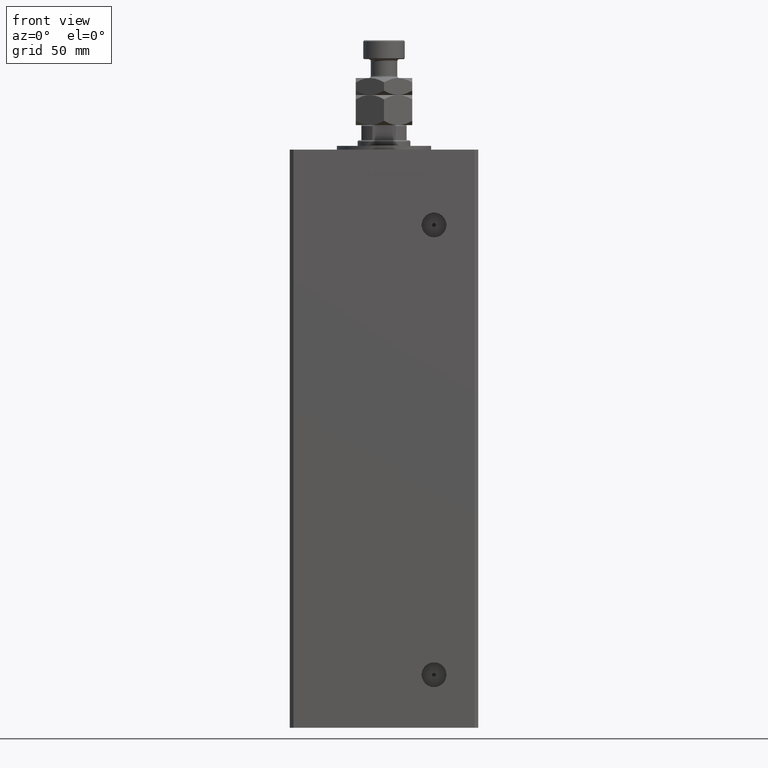
[diagram: clean part render]
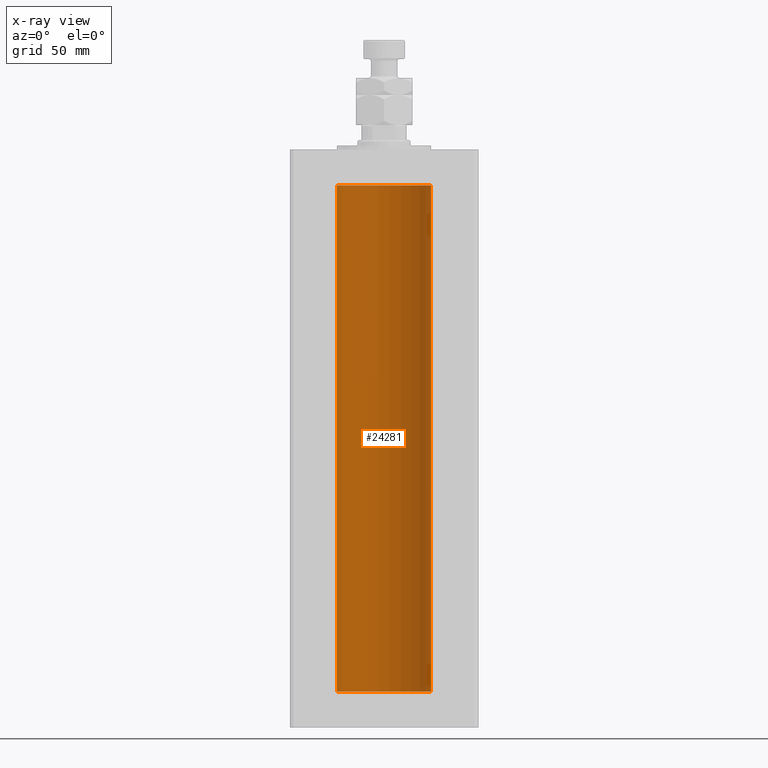
[diagram: x-ray — body ghosted, one internal face saturated and labeled with its STEP entity id]
A machine part, front view, then the same camera in x-ray: the body is ghosted and one INTERNAL B-rep face — a face not visible from any outside direction — is saturated and labeled: STEP entity #24281.
In plain terms, the highlighted cylindrical surface (partial cylindrical patch) has radius 25 mm, axis along (-0, -0, -1).
Its self-contained STEP definition (entity closure, byte-faithful):
#591 = CIRCLE ( 'NONE', #32727, 25.00000000000000000 ) ;
#901 = DIRECTION ( 'NONE',  ( -0.000000000000000000, -0.000000000000000000, -1.000000000000000000 ) ) ;
#3757 = DIRECTION ( 'NONE',  ( -0.000000000000000000, 0.000000000000000000, 1.000000000000000000 ) ) ;
#5106 = VERTEX_POINT ( 'NONE', #32987 ) ;
#6386 = CARTESIAN_POINT ( 'NONE',  ( 0.000000000000000000, 0.000000000000000000, 268.5000000000000000 ) ) ;
#6663 = FACE_OUTER_BOUND ( 'NONE', #44491, .T. ) ;
#8335 = VECTOR ( 'NONE', #15842, 1000.000000000000000 ) ;
#9104 = ORIENTED_EDGE ( 'NONE', *, *, #26717, .F. ) ;
#10496 = CYLINDRICAL_SURFACE ( 'NONE', #24766, 25.00000000000000000 ) ;
#10835 = DIRECTION ( 'NONE',  ( 1.000000000000000000, 0.000000000000000000, 0.000000000000000000 ) ) ;
#10935 = ORIENTED_EDGE ( 'NONE', *, *, #12588, .T. ) ;
#12588 = EDGE_CURVE ( 'NONE', #5106, #26485, #591, .T. ) ;
#14331 = CIRCLE ( 'NONE', #43939, 25.00000000000000000 ) ;
#14376 = CARTESIAN_POINT ( 'NONE',  ( 0.000000000000000000, 0.000000000000000000, 268.5000000000000000 ) ) ;
#14680 = VECTOR ( 'NONE', #901, 1000.000000000000000 ) ;
#15470 = CARTESIAN_POINT ( 'NONE',  ( -25.00000000000000000, 0.000000000000000000, 0.000000000000000000 ) ) ;
#15842 = DIRECTION ( 'NONE',  ( -0.000000000000000000, -0.000000000000000000, -1.000000000000000000 ) ) ;
#16949 = CARTESIAN_POINT ( 'NONE',  ( -25.00000000000000000, 0.000000000000000000, 268.5000000000000000 ) ) ;
#16993 = CARTESIAN_POINT ( 'NONE',  ( 25.00000000000000000, 3.061616997868383043E-15, 0.000000000000000000 ) ) ;
#19378 = EDGE_CURVE ( 'NONE', #38141, #31693, #14331, .T. ) ;
#20357 = DIRECTION ( 'NONE',  ( 1.000000000000000000, 0.000000000000000000, 0.000000000000000000 ) ) ;
#20456 = CARTESIAN_POINT ( 'NONE',  ( 25.00000000000000000, 3.061616997868383043E-15, 268.5000000000000000 ) ) ;
#22413 = ORIENTED_EDGE ( 'NONE', *, *, #19378, .F. ) ;
#22976 = DIRECTION ( 'NONE',  ( -0.000000000000000000, -0.000000000000000000, -1.000000000000000000 ) ) ;
#23238 = ORIENTED_EDGE ( 'NONE', *, *, #38813, .T. ) ;
#24281 = ADVANCED_FACE ( 'NONE', ( #6663 ), #10496, .F. ) ;
#24766 = AXIS2_PLACEMENT_3D ( 'NONE', #6386, #22976, #48085 ) ;
#25779 = CARTESIAN_POINT ( 'NONE',  ( 0.000000000000000000, 0.000000000000000000, 0.000000000000000000 ) ) ;
#26485 = VERTEX_POINT ( 'NONE', #27884 ) ;
#26717 = EDGE_CURVE ( 'NONE', #5106, #38141, #36813, .T. ) ;
#27884 = CARTESIAN_POINT ( 'NONE',  ( -25.00000000000000000, 0.000000000000000000, 268.5000000000000000 ) ) ;
#30986 = DIRECTION ( 'NONE',  ( -0.000000000000000000, 0.000000000000000000, 1.000000000000000000 ) ) ;
#31693 = VERTEX_POINT ( 'NONE', #15470 ) ;
#32727 = AXIS2_PLACEMENT_3D ( 'NONE', #14376, #30986, #10835 ) ;
#32987 = CARTESIAN_POINT ( 'NONE',  ( 25.00000000000000000, 3.061616997868383043E-15, 268.5000000000000000 ) ) ;
#36813 = LINE ( 'NONE', #20456, #8335 ) ;
#38141 = VERTEX_POINT ( 'NONE', #16993 ) ;
#38813 = EDGE_CURVE ( 'NONE', #26485, #31693, #50735, .T. ) ;
#43939 = AXIS2_PLACEMENT_3D ( 'NONE', #25779, #3757, #20357 ) ;
#44491 = EDGE_LOOP ( 'NONE', ( #9104, #10935, #23238, #22413 ) ) ;
#48085 = DIRECTION ( 'NONE',  ( -1.000000000000000000, 0.000000000000000000, 0.000000000000000000 ) ) ;
#50735 = LINE ( 'NONE', #16949, #14680 ) ;